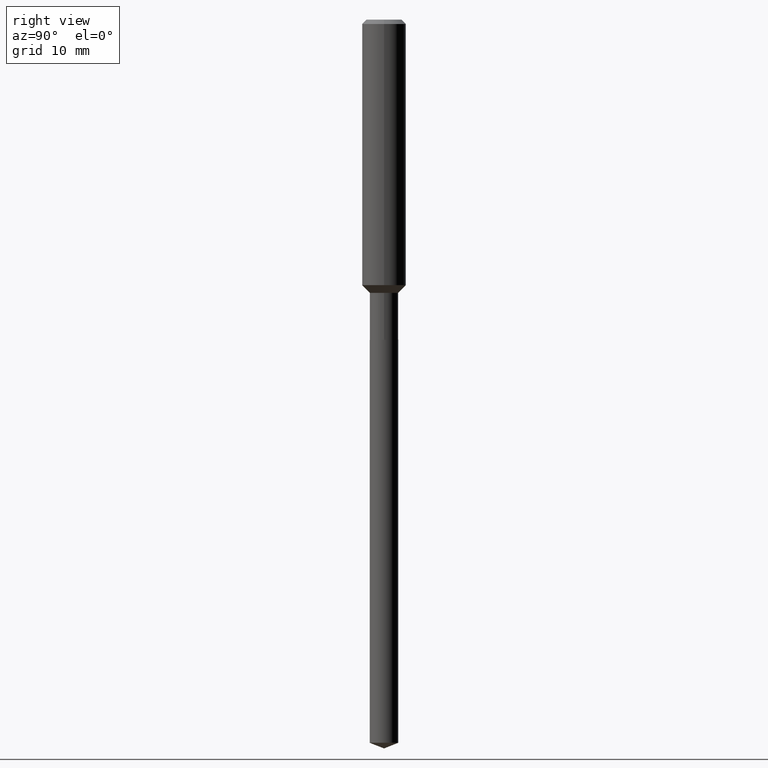
[diagram: clean part render]
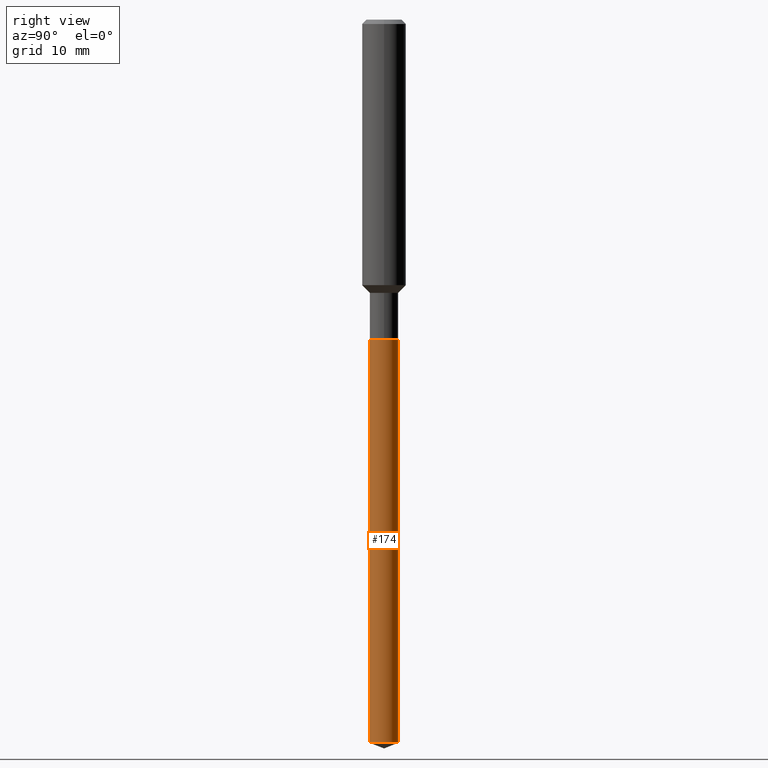
[diagram: same view with one face highlighted and labeled with its STEP entity id]
A machine part, right view. The second image highlights one B-rep face of the part: STEP entity #174.
In plain terms, the highlighted cylindrical surface (edge-blend (fillet) strip) has radius 1.9495 mm, axis along (-0, 0, 1).
Its self-contained STEP definition (entity closure, byte-faithful):
#2 = LINE ( 'NONE', #48, #432 ) ;
#20 = DIRECTION ( 'NONE',  ( -6.982962677686265133E-15, -1.000000000000000000, 3.559411066663534686E-15 ) ) ;
#22 = VERTEX_POINT ( 'NONE', #245 ) ;
#30 = VERTEX_POINT ( 'NONE', #418 ) ;
#39 = DIRECTION ( 'NONE',  ( -2.445430808607122384E-29, 3.491535753537549609E-15, 1.000000000000000000 ) ) ;
#45 = DIRECTION ( 'NONE',  ( -2.445430808607122384E-29, 3.491535753537550004E-15, 1.000000000000000000 ) ) ;
#47 = EDGE_CURVE ( 'NONE', #223, #22, #2, .T. ) ;
#48 = CARTESIAN_POINT ( 'NONE',  ( -5.359423855123787186E-16, -0.07675000000000603562, -1.726199999999999957 ) ) ;
#117 = AXIS2_PLACEMENT_3D ( 'NONE', #319, #290, #20 ) ;
#123 = EDGE_CURVE ( 'NONE', #223, #435, #388, .T. ) ;
#124 = ORIENTED_EDGE ( 'NONE', *, *, #394, .T. ) ;
#128 = FACE_OUTER_BOUND ( 'NONE', #184, .T. ) ;
#156 = CARTESIAN_POINT ( 'NONE',  ( 4.221368253236783353E-29, -6.026995087111038735E-15, -1.726200000000000401 ) ) ;
#174 = ADVANCED_FACE ( 'NONE', ( #128 ), #283, .T. ) ;
#184 = EDGE_LOOP ( 'NONE', ( #189, #124, #204, #367 ) ) ;
#189 = ORIENTED_EDGE ( 'NONE', *, *, #123, .T. ) ;
#204 = ORIENTED_EDGE ( 'NONE', *, *, #471, .F. ) ;
#220 = DIRECTION ( 'NONE',  ( -2.445430808607122384E-29, 3.491535753537549609E-15, 1.000000000000000000 ) ) ;
#223 = VERTEX_POINT ( 'NONE', #433 ) ;
#245 = CARTESIAN_POINT ( 'NONE',  ( -5.359423855123787186E-16, -0.07675000000000603562, -1.726199999999999957 ) ) ;
#283 = CYLINDRICAL_SURFACE ( 'NONE', #117, 0.07675000000000001266 ) ;
#290 = DIRECTION ( 'NONE',  ( -2.445430808607122384E-29, 3.491535753537550004E-15, 1.000000000000000000 ) ) ;
#313 = DIRECTION ( 'NONE',  ( -6.982962677686265133E-15, -1.000000000000000000, 3.559411066663534686E-15 ) ) ;
#319 = CARTESIAN_POINT ( 'NONE',  ( 4.221368253236783353E-29, -6.026995087111038735E-15, -1.726200000000000401 ) ) ;
#334 = LINE ( 'NONE', #337, #357 ) ;
#337 = CARTESIAN_POINT ( 'NONE',  ( 5.453415496959190880E-16, 0.07674999999999397582, -1.726200000000000623 ) ) ;
#357 = VECTOR ( 'NONE', #220, 39.37007874015748143 ) ;
#363 = AXIS2_PLACEMENT_3D ( 'NONE', #461, #469, #477 ) ;
#367 = ORIENTED_EDGE ( 'NONE', *, *, #47, .F. ) ;
#388 = CIRCLE ( 'NONE', #363, 0.07675000000000001266 ) ;
#394 = EDGE_CURVE ( 'NONE', #435, #30, #334, .T. ) ;
#407 = CARTESIAN_POINT ( 'NONE',  ( 5.453415496959724348E-16, 0.07674999999998641242, -3.898767370996552906 ) ) ;
#418 = CARTESIAN_POINT ( 'NONE',  ( 5.453415496959725334E-16, 0.07674999999999397582, -1.726200000000000623 ) ) ;
#432 = VECTOR ( 'NONE', #39, 39.37007874015748143 ) ;
#433 = CARTESIAN_POINT ( 'NONE',  ( -5.359423855123256677E-16, -0.07675000000001364064, -3.898767370996552462 ) ) ;
#435 = VERTEX_POINT ( 'NONE', #407 ) ;
#443 = AXIS2_PLACEMENT_3D ( 'NONE', #156, #45, #313 ) ;
#453 = CIRCLE ( 'NONE', #443, 0.07675000000000001266 ) ;
#461 = CARTESIAN_POINT ( 'NONE',  ( 9.534231436046332391E-29, -1.361259173991458083E-14, -3.898767370996552906 ) ) ;
#469 = DIRECTION ( 'NONE',  ( -2.445430808607122384E-29, 3.491535753537550004E-15, 1.000000000000000000 ) ) ;
#471 = EDGE_CURVE ( 'NONE', #22, #30, #453, .T. ) ;
#477 = DIRECTION ( 'NONE',  ( -6.982962677686265133E-15, -1.000000000000000000, 0.000000000000000000 ) ) ;